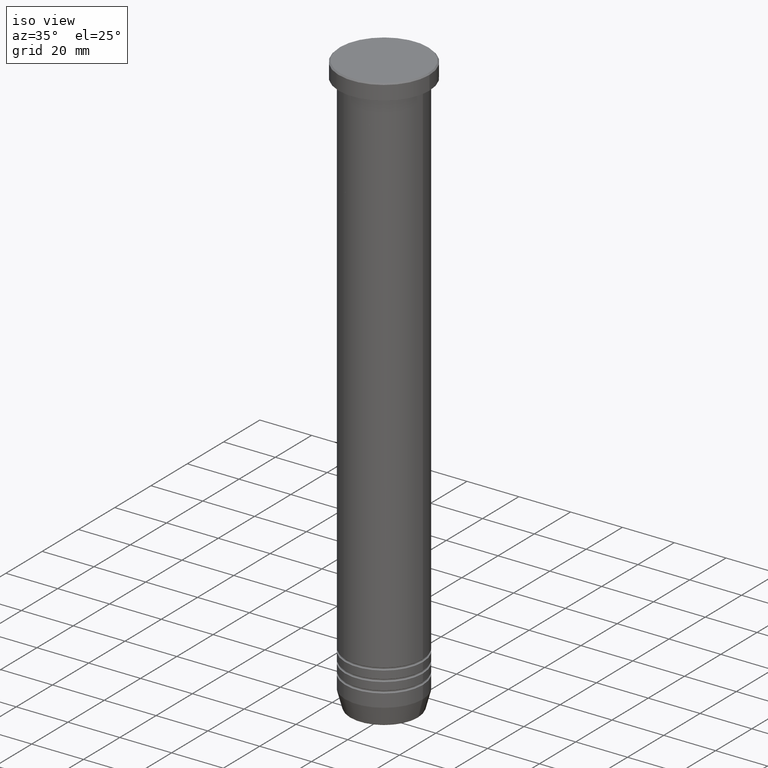
[diagram: clean part render]
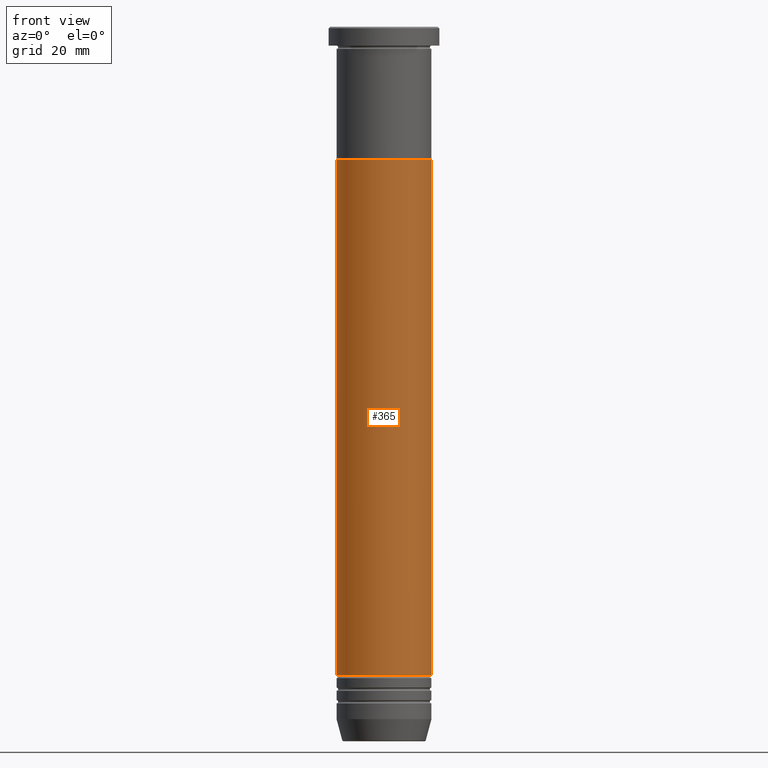
[diagram: tour spotlight — one face highlighted and labeled with its STEP entity id]
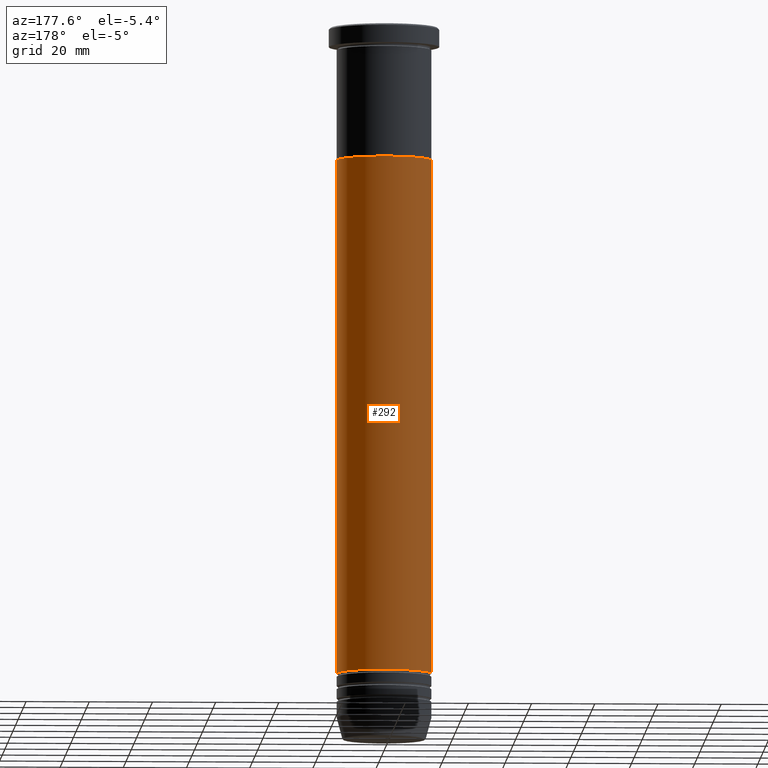
[diagram: tour spotlight — one face highlighted and labeled with its STEP entity id]
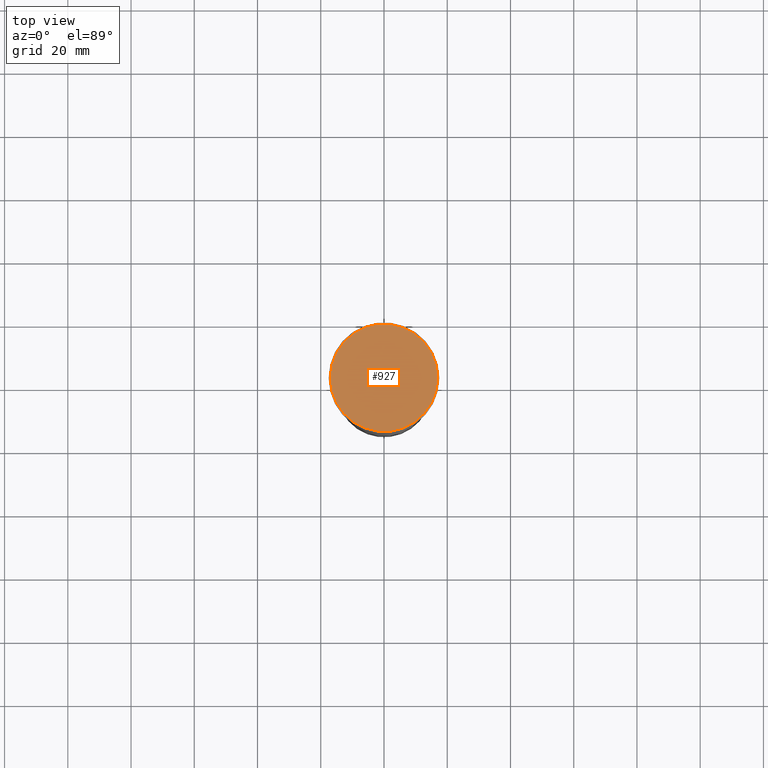
[diagram: tour spotlight — one face highlighted and labeled with its STEP entity id]
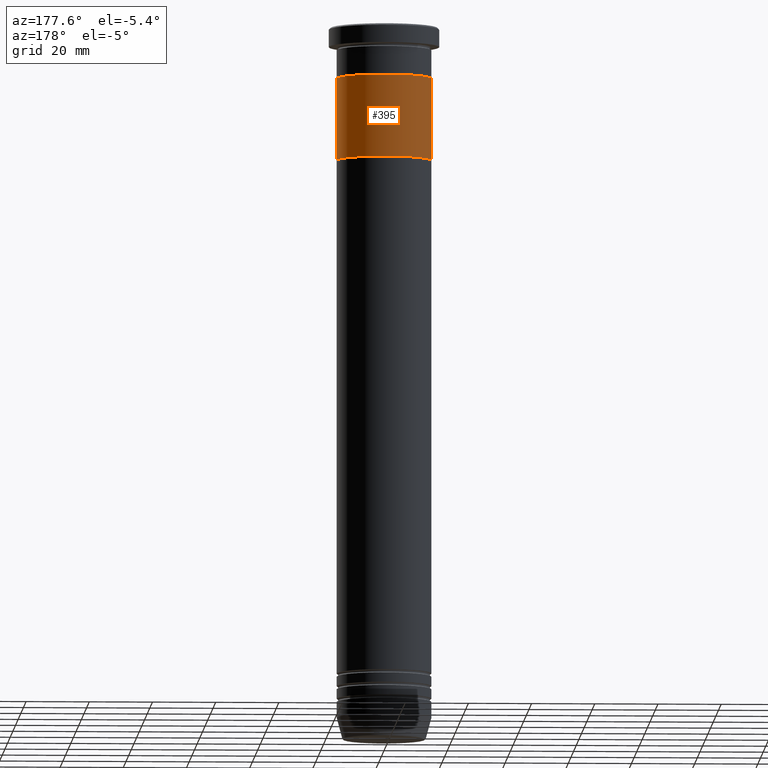
[diagram: tour spotlight — one face highlighted and labeled with its STEP entity id]
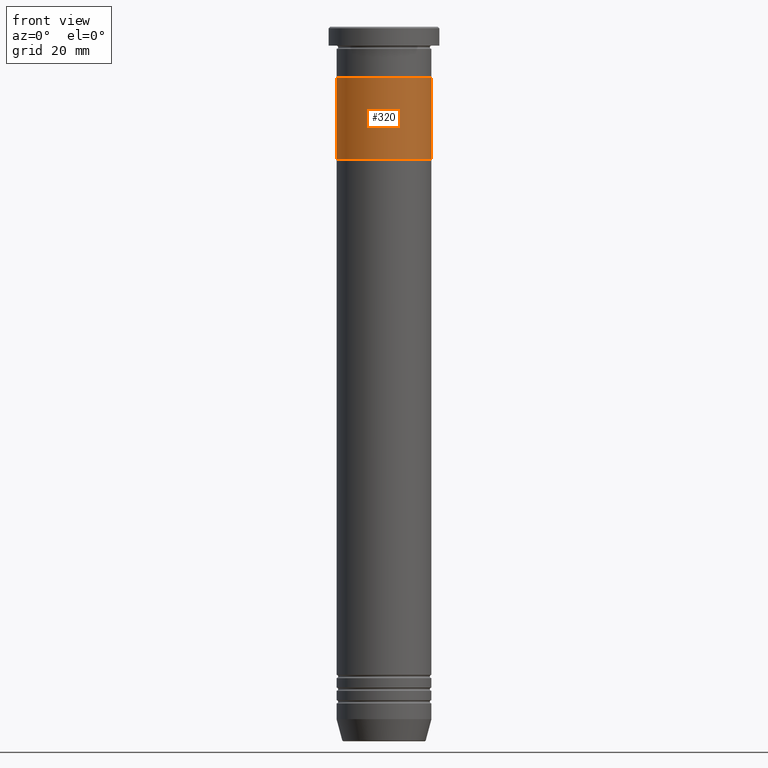
[diagram: tour spotlight — one face highlighted and labeled with its STEP entity id]
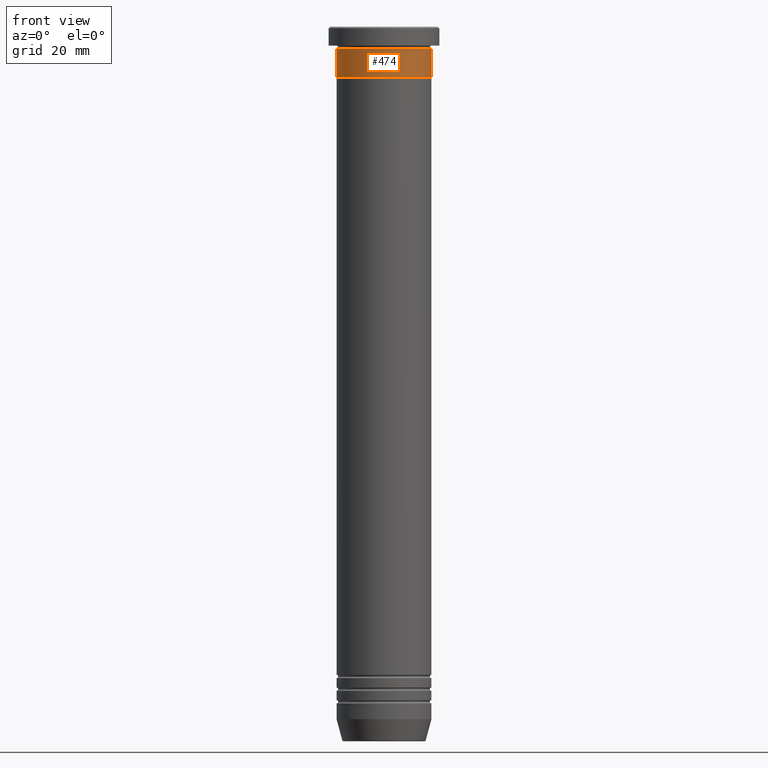
[diagram: tour spotlight — one face highlighted and labeled with its STEP entity id]
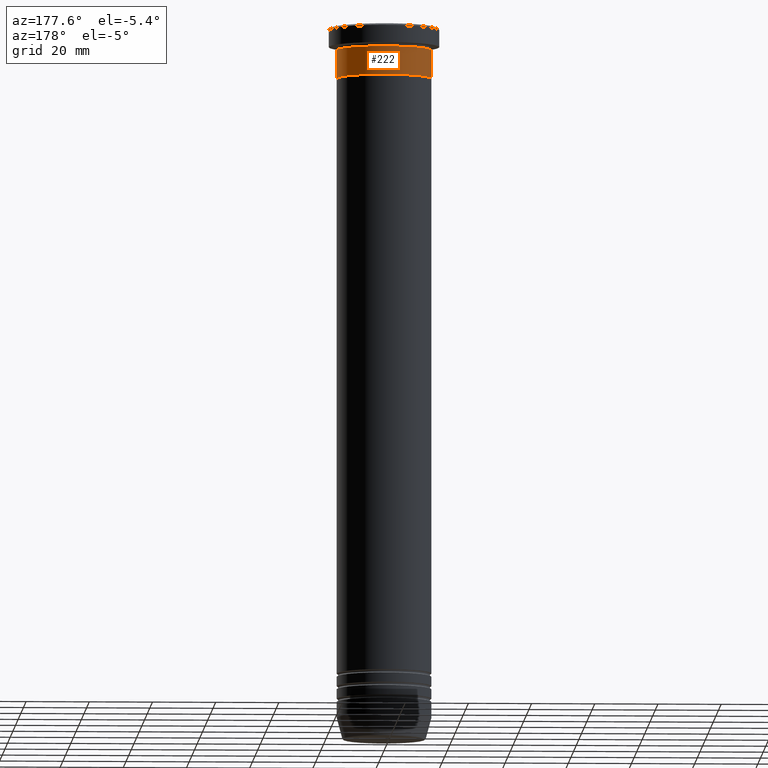
[diagram: tour spotlight — one face highlighted and labeled with its STEP entity id]
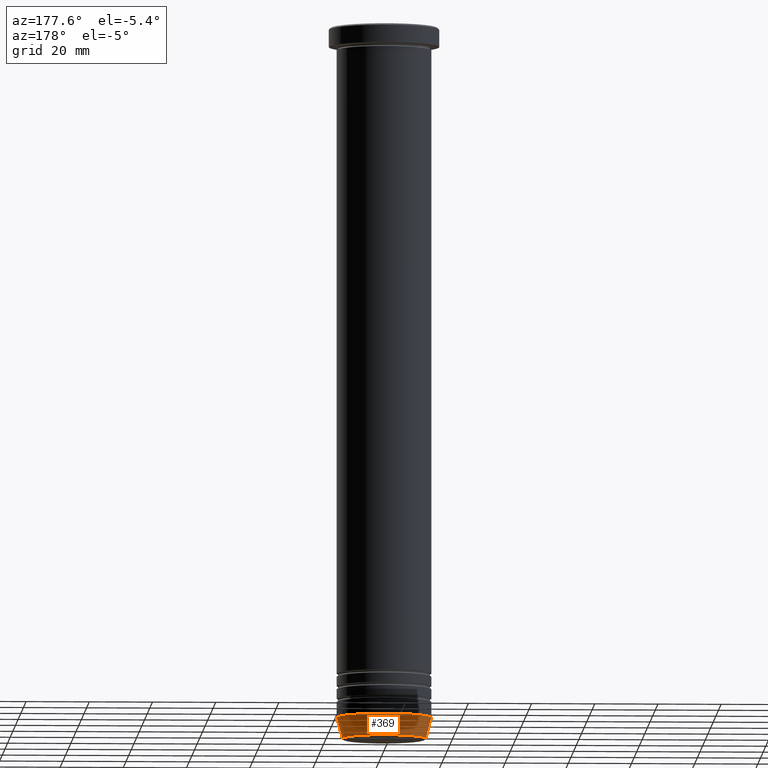
[diagram: tour spotlight — one face highlighted and labeled with its STEP entity id]
A machine part: a face-by-face anatomy tour. The part has 43 B-rep faces; the first image is the clean iso view, then the 8 largest visible faces are spotlighted one at a time (largest first), each with its STEP entity span.

Face 1 — front view, entity #365. In plain terms, the highlighted cylindrical surface (partial cylindrical patch) has radius 15 mm, axis along (-0, -0, 1).
Definition (entity closure, byte-faithful):
#24 = DIRECTION ( 'NONE',  ( 1.000000000000000000, 0.000000000000000000, 0.000000000000000000 ) ) ;
#38 = EDGE_CURVE ( 'NONE', #825, #1015, #943, .T. ) ;
#58 = ORIENTED_EDGE ( 'NONE', *, *, #1002, .F. ) ;
#71 = CARTESIAN_POINT ( 'NONE',  ( 15.00000000000000000, 0.000000000000000000, -41.99999999999999289 ) ) ;
#96 = ORIENTED_EDGE ( 'NONE', *, *, #313, .T. ) ;
#106 = AXIS2_PLACEMENT_3D ( 'NONE', #897, #728, #285 ) ;
#175 = VERTEX_POINT ( 'NONE', #525 ) ;
#184 = ORIENTED_EDGE ( 'NONE', *, *, #895, .T. ) ;
#190 = CIRCLE ( 'NONE', #845, 15.00000000000000000 ) ;
#199 = CYLINDRICAL_SURFACE ( 'NONE', #596, 14.99999999999999645 ) ;
#234 = DIRECTION ( 'NONE',  ( -0.000000000000000000, -0.000000000000000000, 1.000000000000000000 ) ) ;
#271 = VERTEX_POINT ( 'NONE', #71 ) ;
#285 = DIRECTION ( 'NONE',  ( 1.000000000000000000, 0.000000000000000000, 0.000000000000000000 ) ) ;
#295 = VECTOR ( 'NONE', #234, 1000.000000000000000 ) ;
#313 = EDGE_CURVE ( 'NONE', #825, #175, #1130, .T. ) ;
#365 = ADVANCED_FACE ( 'NONE', ( #992 ), #199, .T. ) ;
#391 = CARTESIAN_POINT ( 'NONE',  ( -15.00000000000000000, 1.836970198721029589E-15, -41.99999999999999289 ) ) ;
#429 = ORIENTED_EDGE ( 'NONE', *, *, #38, .F. ) ;
#464 = CARTESIAN_POINT ( 'NONE',  ( 14.99999999999999645, 0.000000000000000000, 0.000000000000000000 ) ) ;
#477 = DIRECTION ( 'NONE',  ( -0.000000000000000000, -0.000000000000000000, 1.000000000000000000 ) ) ;
#525 = CARTESIAN_POINT ( 'NONE',  ( 14.99999999999999112, 0.000000000000000000, -205.0000000000000000 ) ) ;
#559 = DIRECTION ( 'NONE',  ( -0.000000000000000000, -0.000000000000000000, 1.000000000000000000 ) ) ;
#596 = AXIS2_PLACEMENT_3D ( 'NONE', #651, #559, #24 ) ;
#631 = DIRECTION ( 'NONE',  ( -0.000000000000000000, -0.000000000000000000, 1.000000000000000000 ) ) ;
#651 = CARTESIAN_POINT ( 'NONE',  ( 0.000000000000000000, 0.000000000000000000, 0.000000000000000000 ) ) ;
#659 = DIRECTION ( 'NONE',  ( 1.000000000000000000, 0.000000000000000000, 0.000000000000000000 ) ) ;
#728 = DIRECTION ( 'NONE',  ( -0.000000000000000000, -0.000000000000000000, 1.000000000000000000 ) ) ;
#803 = LINE ( 'NONE', #464, #1033 ) ;
#825 = VERTEX_POINT ( 'NONE', #1003 ) ;
#845 = AXIS2_PLACEMENT_3D ( 'NONE', #917, #477, #659 ) ;
#859 = CARTESIAN_POINT ( 'NONE',  ( -14.99999999999999645, 1.836970198721029194E-15, 0.000000000000000000 ) ) ;
#895 = EDGE_CURVE ( 'NONE', #175, #271, #803, .T. ) ;
#897 = CARTESIAN_POINT ( 'NONE',  ( 0.000000000000000000, 0.000000000000000000, -205.0000000000000000 ) ) ;
#917 = CARTESIAN_POINT ( 'NONE',  ( 0.000000000000000000, 0.000000000000000000, -41.99999999999999289 ) ) ;
#943 = LINE ( 'NONE', #859, #295 ) ;
#992 = FACE_OUTER_BOUND ( 'NONE', #1100, .T. ) ;
#1002 = EDGE_CURVE ( 'NONE', #1015, #271, #190, .T. ) ;
#1003 = CARTESIAN_POINT ( 'NONE',  ( -14.99999999999999112, 1.836970198721028800E-15, -205.0000000000000000 ) ) ;
#1015 = VERTEX_POINT ( 'NONE', #391 ) ;
#1033 = VECTOR ( 'NONE', #631, 1000.000000000000000 ) ;
#1100 = EDGE_LOOP ( 'NONE', ( #429, #96, #184, #58 ) ) ;
#1130 = CIRCLE ( 'NONE', #106, 14.99999999999999112 ) ;

Face 2 — auxiliary view, entity #292. In plain terms, the highlighted cylindrical surface (partial cylindrical patch) has radius 15 mm, axis along (-0, -0, 1).
Definition (entity closure, byte-faithful):
#17 = DIRECTION ( 'NONE',  ( 1.000000000000000000, 0.000000000000000000, 0.000000000000000000 ) ) ;
#38 = EDGE_CURVE ( 'NONE', #825, #1015, #943, .T. ) ;
#71 = CARTESIAN_POINT ( 'NONE',  ( 15.00000000000000000, 0.000000000000000000, -41.99999999999999289 ) ) ;
#82 = EDGE_CURVE ( 'NONE', #271, #1015, #683, .T. ) ;
#125 = CYLINDRICAL_SURFACE ( 'NONE', #330, 14.99999999999999645 ) ;
#175 = VERTEX_POINT ( 'NONE', #525 ) ;
#203 = AXIS2_PLACEMENT_3D ( 'NONE', #807, #551, #252 ) ;
#208 = ORIENTED_EDGE ( 'NONE', *, *, #287, .T. ) ;
#234 = DIRECTION ( 'NONE',  ( -0.000000000000000000, -0.000000000000000000, 1.000000000000000000 ) ) ;
#244 = DIRECTION ( 'NONE',  ( 1.000000000000000000, 0.000000000000000000, 0.000000000000000000 ) ) ;
#249 = ORIENTED_EDGE ( 'NONE', *, *, #895, .F. ) ;
#252 = DIRECTION ( 'NONE',  ( 1.000000000000000000, 0.000000000000000000, 0.000000000000000000 ) ) ;
#271 = VERTEX_POINT ( 'NONE', #71 ) ;
#287 = EDGE_CURVE ( 'NONE', #175, #825, #654, .T. ) ;
#292 = ADVANCED_FACE ( 'NONE', ( #1142 ), #125, .T. ) ;
#295 = VECTOR ( 'NONE', #234, 1000.000000000000000 ) ;
#330 = AXIS2_PLACEMENT_3D ( 'NONE', #1085, #1081, #17 ) ;
#391 = CARTESIAN_POINT ( 'NONE',  ( -15.00000000000000000, 1.836970198721029589E-15, -41.99999999999999289 ) ) ;
#422 = AXIS2_PLACEMENT_3D ( 'NONE', #663, #930, #244 ) ;
#464 = CARTESIAN_POINT ( 'NONE',  ( 14.99999999999999645, 0.000000000000000000, 0.000000000000000000 ) ) ;
#520 = ORIENTED_EDGE ( 'NONE', *, *, #38, .T. ) ;
#525 = CARTESIAN_POINT ( 'NONE',  ( 14.99999999999999112, 0.000000000000000000, -205.0000000000000000 ) ) ;
#551 = DIRECTION ( 'NONE',  ( -0.000000000000000000, -0.000000000000000000, 1.000000000000000000 ) ) ;
#631 = DIRECTION ( 'NONE',  ( -0.000000000000000000, -0.000000000000000000, 1.000000000000000000 ) ) ;
#654 = CIRCLE ( 'NONE', #203, 14.99999999999999112 ) ;
#663 = CARTESIAN_POINT ( 'NONE',  ( 0.000000000000000000, 0.000000000000000000, -41.99999999999999289 ) ) ;
#683 = CIRCLE ( 'NONE', #422, 15.00000000000000000 ) ;
#803 = LINE ( 'NONE', #464, #1033 ) ;
#807 = CARTESIAN_POINT ( 'NONE',  ( 0.000000000000000000, 0.000000000000000000, -205.0000000000000000 ) ) ;
#815 = EDGE_LOOP ( 'NONE', ( #208, #520, #999, #249 ) ) ;
#825 = VERTEX_POINT ( 'NONE', #1003 ) ;
#859 = CARTESIAN_POINT ( 'NONE',  ( -14.99999999999999645, 1.836970198721029194E-15, 0.000000000000000000 ) ) ;
#895 = EDGE_CURVE ( 'NONE', #175, #271, #803, .T. ) ;
#930 = DIRECTION ( 'NONE',  ( -0.000000000000000000, -0.000000000000000000, 1.000000000000000000 ) ) ;
#943 = LINE ( 'NONE', #859, #295 ) ;
#999 = ORIENTED_EDGE ( 'NONE', *, *, #82, .F. ) ;
#1003 = CARTESIAN_POINT ( 'NONE',  ( -14.99999999999999112, 1.836970198721028800E-15, -205.0000000000000000 ) ) ;
#1015 = VERTEX_POINT ( 'NONE', #391 ) ;
#1033 = VECTOR ( 'NONE', #631, 1000.000000000000000 ) ;
#1081 = DIRECTION ( 'NONE',  ( -0.000000000000000000, -0.000000000000000000, 1.000000000000000000 ) ) ;
#1085 = CARTESIAN_POINT ( 'NONE',  ( 0.000000000000000000, 0.000000000000000000, 0.000000000000000000 ) ) ;
#1142 = FACE_OUTER_BOUND ( 'NONE', #815, .T. ) ;

Face 3 — top view, entity #927. In plain terms, the highlighted planar face has unit normal (0, -0, 1).
Definition (entity closure, byte-faithful):
#11 = DIRECTION ( 'NONE',  ( 1.000000000000000000, 0.000000000000000000, 0.000000000000000000 ) ) ;
#109 = AXIS2_PLACEMENT_3D ( 'NONE', #745, #905, #307 ) ;
#133 = DIRECTION ( 'NONE',  ( 1.000000000000000000, 0.000000000000000000, 0.000000000000000000 ) ) ;
#236 = ORIENTED_EDGE ( 'NONE', *, *, #1077, .T. ) ;
#241 = AXIS2_PLACEMENT_3D ( 'NONE', #715, #536, #11 ) ;
#307 = DIRECTION ( 'NONE',  ( 1.000000000000000000, 0.000000000000000000, 0.000000000000000000 ) ) ;
#381 = EDGE_LOOP ( 'NONE', ( #383, #236 ) ) ;
#383 = ORIENTED_EDGE ( 'NONE', *, *, #975, .T. ) ;
#441 = CARTESIAN_POINT ( 'NONE',  ( -17.00000000000000000, 0.000000000000000000, 0.000000000000000000 ) ) ;
#459 = PLANE ( 'NONE',  #241 ) ;
#511 = DIRECTION ( 'NONE',  ( -0.000000000000000000, -0.000000000000000000, 1.000000000000000000 ) ) ;
#529 = CIRCLE ( 'NONE', #109, 17.00000000000000000 ) ;
#532 = VERTEX_POINT ( 'NONE', #441 ) ;
#536 = DIRECTION ( 'NONE',  ( 0.000000000000000000, -0.000000000000000000, 1.000000000000000000 ) ) ;
#563 = CIRCLE ( 'NONE', #868, 17.00000000000000000 ) ;
#715 = CARTESIAN_POINT ( 'NONE',  ( 0.000000000000000000, 0.000000000000000000, 0.000000000000000000 ) ) ;
#725 = VERTEX_POINT ( 'NONE', #899 ) ;
#745 = CARTESIAN_POINT ( 'NONE',  ( 0.000000000000000000, 0.000000000000000000, 0.000000000000000000 ) ) ;
#789 = FACE_OUTER_BOUND ( 'NONE', #381, .T. ) ;
#868 = AXIS2_PLACEMENT_3D ( 'NONE', #1116, #511, #133 ) ;
#899 = CARTESIAN_POINT ( 'NONE',  ( 17.00000000000000000, 2.112515728529184067E-15, 0.000000000000000000 ) ) ;
#905 = DIRECTION ( 'NONE',  ( -0.000000000000000000, -0.000000000000000000, 1.000000000000000000 ) ) ;
#927 = ADVANCED_FACE ( 'NONE', ( #789 ), #459, .T. ) ;
#975 = EDGE_CURVE ( 'NONE', #532, #725, #529, .T. ) ;
#1077 = EDGE_CURVE ( 'NONE', #725, #532, #563, .T. ) ;
#1116 = CARTESIAN_POINT ( 'NONE',  ( 0.000000000000000000, 0.000000000000000000, 0.000000000000000000 ) ) ;

Face 4 — auxiliary view, entity #395. In plain terms, the highlighted cylindrical surface (partial cylindrical patch) has radius 15 mm, axis along (-0, -0, 1).
Definition (entity closure, byte-faithful):
#16 = AXIS2_PLACEMENT_3D ( 'NONE', #95, #179, #274 ) ;
#40 = LINE ( 'NONE', #323, #960 ) ;
#95 = CARTESIAN_POINT ( 'NONE',  ( 0.000000000000000000, 0.000000000000000000, -16.00000000000000000 ) ) ;
#113 = EDGE_CURVE ( 'NONE', #343, #117, #1025, .T. ) ;
#117 = VERTEX_POINT ( 'NONE', #1124 ) ;
#179 = DIRECTION ( 'NONE',  ( 0.000000000000000000, 0.000000000000000000, -1.000000000000000000 ) ) ;
#202 = VECTOR ( 'NONE', #597, 1000.000000000000000 ) ;
#242 = EDGE_CURVE ( 'NONE', #1094, #117, #1110, .T. ) ;
#274 = DIRECTION ( 'NONE',  ( -1.000000000000000000, 0.000000000000000000, 0.000000000000000000 ) ) ;
#298 = AXIS2_PLACEMENT_3D ( 'NONE', #718, #437, #1059 ) ;
#323 = CARTESIAN_POINT ( 'NONE',  ( -15.00000000000000000, 1.836970198721029194E-15, -41.99999999999999289 ) ) ;
#343 = VERTEX_POINT ( 'NONE', #466 ) ;
#395 = ADVANCED_FACE ( 'NONE', ( #396 ), #1103, .T. ) ;
#396 = FACE_OUTER_BOUND ( 'NONE', #573, .T. ) ;
#437 = DIRECTION ( 'NONE',  ( 0.000000000000000000, 0.000000000000000000, -1.000000000000000000 ) ) ;
#466 = CARTESIAN_POINT ( 'NONE',  ( 15.00000000000000000, 0.000000000000000000, -41.99999999999999289 ) ) ;
#497 = ORIENTED_EDGE ( 'NONE', *, *, #113, .F. ) ;
#502 = CARTESIAN_POINT ( 'NONE',  ( -15.00000000000000000, 1.836970198721029194E-15, -41.99999999999999289 ) ) ;
#506 = DIRECTION ( 'NONE',  ( 1.000000000000000000, 0.000000000000000000, 0.000000000000000000 ) ) ;
#550 = CIRCLE ( 'NONE', #298, 15.00000000000000000 ) ;
#573 = EDGE_LOOP ( 'NONE', ( #1122, #811, #824, #497 ) ) ;
#583 = CARTESIAN_POINT ( 'NONE',  ( -15.00000000000000000, 1.836970198721029194E-15, -16.00000000000000000 ) ) ;
#587 = CARTESIAN_POINT ( 'NONE',  ( 0.000000000000000000, 0.000000000000000000, -41.99999999999999289 ) ) ;
#597 = DIRECTION ( 'NONE',  ( -0.000000000000000000, -0.000000000000000000, 1.000000000000000000 ) ) ;
#718 = CARTESIAN_POINT ( 'NONE',  ( 0.000000000000000000, 0.000000000000000000, -41.99999999999999289 ) ) ;
#772 = CARTESIAN_POINT ( 'NONE',  ( 15.00000000000000000, 0.000000000000000000, -41.99999999999999289 ) ) ;
#811 = ORIENTED_EDGE ( 'NONE', *, *, #1056, .T. ) ;
#813 = AXIS2_PLACEMENT_3D ( 'NONE', #587, #929, #506 ) ;
#824 = ORIENTED_EDGE ( 'NONE', *, *, #242, .T. ) ;
#852 = DIRECTION ( 'NONE',  ( -0.000000000000000000, -0.000000000000000000, 1.000000000000000000 ) ) ;
#929 = DIRECTION ( 'NONE',  ( -0.000000000000000000, -0.000000000000000000, 1.000000000000000000 ) ) ;
#942 = EDGE_CURVE ( 'NONE', #1137, #343, #550, .T. ) ;
#960 = VECTOR ( 'NONE', #852, 1000.000000000000000 ) ;
#1025 = LINE ( 'NONE', #772, #202 ) ;
#1056 = EDGE_CURVE ( 'NONE', #1137, #1094, #40, .T. ) ;
#1059 = DIRECTION ( 'NONE',  ( -1.000000000000000000, 0.000000000000000000, 0.000000000000000000 ) ) ;
#1094 = VERTEX_POINT ( 'NONE', #583 ) ;
#1103 = CYLINDRICAL_SURFACE ( 'NONE', #813, 15.00000000000000000 ) ;
#1110 = CIRCLE ( 'NONE', #16, 15.00000000000000000 ) ;
#1122 = ORIENTED_EDGE ( 'NONE', *, *, #942, .F. ) ;
#1124 = CARTESIAN_POINT ( 'NONE',  ( 15.00000000000000000, 0.000000000000000000, -16.00000000000000000 ) ) ;
#1137 = VERTEX_POINT ( 'NONE', #502 ) ;

Face 5 — front view, entity #320. In plain terms, the highlighted cylindrical surface (partial cylindrical patch) has radius 15 mm, axis along (-0, -0, 1).
Definition (entity closure, byte-faithful):
#31 = ORIENTED_EDGE ( 'NONE', *, *, #1056, .F. ) ;
#40 = LINE ( 'NONE', #323, #960 ) ;
#44 = EDGE_CURVE ( 'NONE', #343, #1137, #46, .T. ) ;
#46 = CIRCLE ( 'NONE', #524, 15.00000000000000000 ) ;
#102 = ORIENTED_EDGE ( 'NONE', *, *, #44, .F. ) ;
#107 = DIRECTION ( 'NONE',  ( -0.000000000000000000, -0.000000000000000000, 1.000000000000000000 ) ) ;
#113 = EDGE_CURVE ( 'NONE', #343, #117, #1025, .T. ) ;
#117 = VERTEX_POINT ( 'NONE', #1124 ) ;
#202 = VECTOR ( 'NONE', #597, 1000.000000000000000 ) ;
#229 = DIRECTION ( 'NONE',  ( -1.000000000000000000, 0.000000000000000000, 0.000000000000000000 ) ) ;
#258 = EDGE_CURVE ( 'NONE', #117, #1094, #489, .T. ) ;
#265 = DIRECTION ( 'NONE',  ( -1.000000000000000000, 0.000000000000000000, 0.000000000000000000 ) ) ;
#320 = ADVANCED_FACE ( 'NONE', ( #490 ), #1097, .T. ) ;
#323 = CARTESIAN_POINT ( 'NONE',  ( -15.00000000000000000, 1.836970198721029194E-15, -41.99999999999999289 ) ) ;
#324 = EDGE_LOOP ( 'NONE', ( #31, #102, #417, #691 ) ) ;
#343 = VERTEX_POINT ( 'NONE', #466 ) ;
#370 = CARTESIAN_POINT ( 'NONE',  ( 0.000000000000000000, 0.000000000000000000, -41.99999999999999289 ) ) ;
#417 = ORIENTED_EDGE ( 'NONE', *, *, #113, .T. ) ;
#466 = CARTESIAN_POINT ( 'NONE',  ( 15.00000000000000000, 0.000000000000000000, -41.99999999999999289 ) ) ;
#476 = DIRECTION ( 'NONE',  ( 1.000000000000000000, 0.000000000000000000, 0.000000000000000000 ) ) ;
#489 = CIRCLE ( 'NONE', #828, 15.00000000000000000 ) ;
#490 = FACE_OUTER_BOUND ( 'NONE', #324, .T. ) ;
#501 = CARTESIAN_POINT ( 'NONE',  ( 0.000000000000000000, 0.000000000000000000, -41.99999999999999289 ) ) ;
#502 = CARTESIAN_POINT ( 'NONE',  ( -15.00000000000000000, 1.836970198721029194E-15, -41.99999999999999289 ) ) ;
#524 = AXIS2_PLACEMENT_3D ( 'NONE', #501, #675, #229 ) ;
#533 = CARTESIAN_POINT ( 'NONE',  ( 0.000000000000000000, 0.000000000000000000, -16.00000000000000000 ) ) ;
#583 = CARTESIAN_POINT ( 'NONE',  ( -15.00000000000000000, 1.836970198721029194E-15, -16.00000000000000000 ) ) ;
#597 = DIRECTION ( 'NONE',  ( -0.000000000000000000, -0.000000000000000000, 1.000000000000000000 ) ) ;
#635 = DIRECTION ( 'NONE',  ( 0.000000000000000000, 0.000000000000000000, -1.000000000000000000 ) ) ;
#675 = DIRECTION ( 'NONE',  ( 0.000000000000000000, 0.000000000000000000, -1.000000000000000000 ) ) ;
#691 = ORIENTED_EDGE ( 'NONE', *, *, #258, .T. ) ;
#771 = AXIS2_PLACEMENT_3D ( 'NONE', #370, #107, #476 ) ;
#772 = CARTESIAN_POINT ( 'NONE',  ( 15.00000000000000000, 0.000000000000000000, -41.99999999999999289 ) ) ;
#828 = AXIS2_PLACEMENT_3D ( 'NONE', #533, #635, #265 ) ;
#852 = DIRECTION ( 'NONE',  ( -0.000000000000000000, -0.000000000000000000, 1.000000000000000000 ) ) ;
#960 = VECTOR ( 'NONE', #852, 1000.000000000000000 ) ;
#1025 = LINE ( 'NONE', #772, #202 ) ;
#1056 = EDGE_CURVE ( 'NONE', #1137, #1094, #40, .T. ) ;
#1094 = VERTEX_POINT ( 'NONE', #583 ) ;
#1097 = CYLINDRICAL_SURFACE ( 'NONE', #771, 15.00000000000000000 ) ;
#1124 = CARTESIAN_POINT ( 'NONE',  ( 15.00000000000000000, 0.000000000000000000, -16.00000000000000000 ) ) ;
#1137 = VERTEX_POINT ( 'NONE', #502 ) ;

Face 6 — front view, entity #474. In plain terms, the highlighted cylindrical surface (partial cylindrical patch) has radius 15 mm, axis along (-0, -0, 1).
Definition (entity closure, byte-faithful):
#52 = EDGE_LOOP ( 'NONE', ( #1042, #378, #317, #607 ) ) ;
#81 = CARTESIAN_POINT ( 'NONE',  ( 15.00000000000000000, 0.000000000000000000, -6.999999999999999112 ) ) ;
#97 = CARTESIAN_POINT ( 'NONE',  ( -15.00000000000000000, 1.836970198721029589E-15, -16.00000000000000000 ) ) ;
#164 = DIRECTION ( 'NONE',  ( -0.000000000000000000, -0.000000000000000000, 1.000000000000000000 ) ) ;
#170 = EDGE_CURVE ( 'NONE', #860, #821, #891, .T. ) ;
#182 = DIRECTION ( 'NONE',  ( 1.000000000000000000, 0.000000000000000000, 0.000000000000000000 ) ) ;
#187 = DIRECTION ( 'NONE',  ( -0.000000000000000000, -0.000000000000000000, 1.000000000000000000 ) ) ;
#191 = EDGE_CURVE ( 'NONE', #821, #224, #471, .T. ) ;
#198 = DIRECTION ( 'NONE',  ( 1.000000000000000000, 0.000000000000000000, 0.000000000000000000 ) ) ;
#224 = VERTEX_POINT ( 'NONE', #81 ) ;
#228 = CARTESIAN_POINT ( 'NONE',  ( 15.00000000000000000, 0.000000000000000000, -16.00000000000000000 ) ) ;
#256 = CARTESIAN_POINT ( 'NONE',  ( -15.00000000000000000, 1.836970198721029589E-15, -6.999999999999999112 ) ) ;
#264 = LINE ( 'NONE', #791, #885 ) ;
#317 = ORIENTED_EDGE ( 'NONE', *, *, #460, .T. ) ;
#345 = DIRECTION ( 'NONE',  ( -0.000000000000000000, -0.000000000000000000, 1.000000000000000000 ) ) ;
#353 = CARTESIAN_POINT ( 'NONE',  ( -15.00000000000000000, 1.836970198721029589E-15, 0.000000000000000000 ) ) ;
#378 = ORIENTED_EDGE ( 'NONE', *, *, #834, .T. ) ;
#434 = FACE_OUTER_BOUND ( 'NONE', #52, .T. ) ;
#443 = DIRECTION ( 'NONE',  ( -0.000000000000000000, -0.000000000000000000, 1.000000000000000000 ) ) ;
#452 = AXIS2_PLACEMENT_3D ( 'NONE', #873, #443, #182 ) ;
#460 = EDGE_CURVE ( 'NONE', #608, #224, #264, .T. ) ;
#471 = CIRCLE ( 'NONE', #452, 15.00000000000000000 ) ;
#474 = ADVANCED_FACE ( 'NONE', ( #434 ), #539, .T. ) ;
#508 = AXIS2_PLACEMENT_3D ( 'NONE', #731, #345, #198 ) ;
#539 = CYLINDRICAL_SURFACE ( 'NONE', #508, 15.00000000000000000 ) ;
#545 = DIRECTION ( 'NONE',  ( -0.000000000000000000, -0.000000000000000000, 1.000000000000000000 ) ) ;
#607 = ORIENTED_EDGE ( 'NONE', *, *, #191, .F. ) ;
#608 = VERTEX_POINT ( 'NONE', #228 ) ;
#640 = AXIS2_PLACEMENT_3D ( 'NONE', #967, #187, #835 ) ;
#731 = CARTESIAN_POINT ( 'NONE',  ( 0.000000000000000000, 0.000000000000000000, 0.000000000000000000 ) ) ;
#791 = CARTESIAN_POINT ( 'NONE',  ( 15.00000000000000000, 0.000000000000000000, 0.000000000000000000 ) ) ;
#821 = VERTEX_POINT ( 'NONE', #256 ) ;
#834 = EDGE_CURVE ( 'NONE', #860, #608, #979, .T. ) ;
#835 = DIRECTION ( 'NONE',  ( 1.000000000000000000, 0.000000000000000000, 0.000000000000000000 ) ) ;
#860 = VERTEX_POINT ( 'NONE', #97 ) ;
#873 = CARTESIAN_POINT ( 'NONE',  ( 0.000000000000000000, 0.000000000000000000, -6.999999999999999112 ) ) ;
#885 = VECTOR ( 'NONE', #164, 1000.000000000000000 ) ;
#891 = LINE ( 'NONE', #353, #1128 ) ;
#967 = CARTESIAN_POINT ( 'NONE',  ( 0.000000000000000000, 0.000000000000000000, -16.00000000000000000 ) ) ;
#979 = CIRCLE ( 'NONE', #640, 15.00000000000000000 ) ;
#1042 = ORIENTED_EDGE ( 'NONE', *, *, #170, .F. ) ;
#1128 = VECTOR ( 'NONE', #545, 1000.000000000000000 ) ;

Face 7 — auxiliary view, entity #222. In plain terms, the highlighted cylindrical surface (partial cylindrical patch) has radius 15 mm, axis along (-0, -0, 1).
Definition (entity closure, byte-faithful):
#81 = CARTESIAN_POINT ( 'NONE',  ( 15.00000000000000000, 0.000000000000000000, -6.999999999999999112 ) ) ;
#97 = CARTESIAN_POINT ( 'NONE',  ( -15.00000000000000000, 1.836970198721029589E-15, -16.00000000000000000 ) ) ;
#150 = ORIENTED_EDGE ( 'NONE', *, *, #170, .T. ) ;
#160 = EDGE_CURVE ( 'NONE', #224, #821, #735, .T. ) ;
#164 = DIRECTION ( 'NONE',  ( -0.000000000000000000, -0.000000000000000000, 1.000000000000000000 ) ) ;
#170 = EDGE_CURVE ( 'NONE', #860, #821, #891, .T. ) ;
#186 = AXIS2_PLACEMENT_3D ( 'NONE', #462, #435, #189 ) ;
#189 = DIRECTION ( 'NONE',  ( 1.000000000000000000, 0.000000000000000000, 0.000000000000000000 ) ) ;
#222 = ADVANCED_FACE ( 'NONE', ( #1039 ), #1052, .T. ) ;
#224 = VERTEX_POINT ( 'NONE', #81 ) ;
#228 = CARTESIAN_POINT ( 'NONE',  ( 15.00000000000000000, 0.000000000000000000, -16.00000000000000000 ) ) ;
#254 = DIRECTION ( 'NONE',  ( -0.000000000000000000, -0.000000000000000000, 1.000000000000000000 ) ) ;
#255 = CARTESIAN_POINT ( 'NONE',  ( 0.000000000000000000, 0.000000000000000000, -6.999999999999999112 ) ) ;
#256 = CARTESIAN_POINT ( 'NONE',  ( -15.00000000000000000, 1.836970198721029589E-15, -6.999999999999999112 ) ) ;
#264 = LINE ( 'NONE', #791, #885 ) ;
#329 = ORIENTED_EDGE ( 'NONE', *, *, #160, .F. ) ;
#346 = DIRECTION ( 'NONE',  ( 1.000000000000000000, 0.000000000000000000, 0.000000000000000000 ) ) ;
#353 = CARTESIAN_POINT ( 'NONE',  ( -15.00000000000000000, 1.836970198721029589E-15, 0.000000000000000000 ) ) ;
#387 = CIRCLE ( 'NONE', #994, 15.00000000000000000 ) ;
#435 = DIRECTION ( 'NONE',  ( -0.000000000000000000, -0.000000000000000000, 1.000000000000000000 ) ) ;
#460 = EDGE_CURVE ( 'NONE', #608, #224, #264, .T. ) ;
#462 = CARTESIAN_POINT ( 'NONE',  ( 0.000000000000000000, 0.000000000000000000, 0.000000000000000000 ) ) ;
#487 = EDGE_CURVE ( 'NONE', #608, #860, #387, .T. ) ;
#541 = DIRECTION ( 'NONE',  ( -0.000000000000000000, -0.000000000000000000, 1.000000000000000000 ) ) ;
#545 = DIRECTION ( 'NONE',  ( -0.000000000000000000, -0.000000000000000000, 1.000000000000000000 ) ) ;
#547 = AXIS2_PLACEMENT_3D ( 'NONE', #255, #541, #346 ) ;
#608 = VERTEX_POINT ( 'NONE', #228 ) ;
#617 = DIRECTION ( 'NONE',  ( 1.000000000000000000, 0.000000000000000000, 0.000000000000000000 ) ) ;
#680 = EDGE_LOOP ( 'NONE', ( #1029, #150, #329, #916 ) ) ;
#735 = CIRCLE ( 'NONE', #547, 15.00000000000000000 ) ;
#791 = CARTESIAN_POINT ( 'NONE',  ( 15.00000000000000000, 0.000000000000000000, 0.000000000000000000 ) ) ;
#821 = VERTEX_POINT ( 'NONE', #256 ) ;
#860 = VERTEX_POINT ( 'NONE', #97 ) ;
#885 = VECTOR ( 'NONE', #164, 1000.000000000000000 ) ;
#891 = LINE ( 'NONE', #353, #1128 ) ;
#916 = ORIENTED_EDGE ( 'NONE', *, *, #460, .F. ) ;
#966 = CARTESIAN_POINT ( 'NONE',  ( 0.000000000000000000, 0.000000000000000000, -16.00000000000000000 ) ) ;
#994 = AXIS2_PLACEMENT_3D ( 'NONE', #966, #254, #617 ) ;
#1029 = ORIENTED_EDGE ( 'NONE', *, *, #487, .T. ) ;
#1039 = FACE_OUTER_BOUND ( 'NONE', #680, .T. ) ;
#1052 = CYLINDRICAL_SURFACE ( 'NONE', #186, 15.00000000000000000 ) ;
#1128 = VECTOR ( 'NONE', #545, 1000.000000000000000 ) ;

Face 8 — auxiliary view, entity #369. In plain terms, the highlighted conical surface has half-angle 15 deg.
Definition (entity closure, byte-faithful):
#8 = EDGE_CURVE ( 'NONE', #681, #348, #993, .T. ) ;
#48 = CONICAL_SURFACE ( 'NONE', #620, 13.12435565298214080, 0.2617993877991488527 ) ;
#50 = ORIENTED_EDGE ( 'NONE', *, *, #878, .F. ) ;
#76 = EDGE_CURVE ( 'NONE', #348, #351, #1034, .T. ) ;
#120 = FACE_OUTER_BOUND ( 'NONE', #1139, .T. ) ;
#153 = ORIENTED_EDGE ( 'NONE', *, *, #575, .F. ) ;
#221 = VECTOR ( 'NONE', #363, 999.9999999999998863 ) ;
#246 = ORIENTED_EDGE ( 'NONE', *, *, #76, .T. ) ;
#348 = VERTEX_POINT ( 'NONE', #1069 ) ;
#351 = VERTEX_POINT ( 'NONE', #818 ) ;
#363 = DIRECTION ( 'NONE',  ( 0.2588190451025202399, 0.000000000000000000, 0.9659258262890684232 ) ) ;
#369 = ADVANCED_FACE ( 'NONE', ( #120 ), #48, .T. ) ;
#470 = CARTESIAN_POINT ( 'NONE',  ( 14.99999999999999822, 0.000000000000000000, -218.9999999999999716 ) ) ;
#480 = DIRECTION ( 'NONE',  ( -0.000000000000000000, -0.000000000000000000, 1.000000000000000000 ) ) ;
#482 = VERTEX_POINT ( 'NONE', #470 ) ;
#486 = DIRECTION ( 'NONE',  ( 1.000000000000000000, 0.000000000000000000, 0.000000000000000000 ) ) ;
#534 = DIRECTION ( 'NONE',  ( -0.000000000000000000, -0.000000000000000000, 1.000000000000000000 ) ) ;
#538 = CARTESIAN_POINT ( 'NONE',  ( 13.22365507213720015, 0.000000000000000000, -225.6294095225512422 ) ) ;
#555 = ORIENTED_EDGE ( 'NONE', *, *, #8, .T. ) ;
#575 = EDGE_CURVE ( 'NONE', #482, #351, #940, .T. ) ;
#618 = VECTOR ( 'NONE', #851, 999.9999999999998863 ) ;
#620 = AXIS2_PLACEMENT_3D ( 'NONE', #910, #480, #486 ) ;
#681 = VERTEX_POINT ( 'NONE', #538 ) ;
#808 = DIRECTION ( 'NONE',  ( -1.000000000000000000, 0.000000000000000000, 0.000000000000000000 ) ) ;
#818 = CARTESIAN_POINT ( 'NONE',  ( -14.99999999999999822, 1.836970198721029589E-15, -218.9999999999999716 ) ) ;
#840 = CARTESIAN_POINT ( 'NONE',  ( -13.12435565298214080, 1.607270014129604977E-15, -225.9999999999999716 ) ) ;
#851 = DIRECTION ( 'NONE',  ( -0.2588190451025202399, 3.169619151431758162E-17, 0.9659258262890684232 ) ) ;
#878 = EDGE_CURVE ( 'NONE', #681, #482, #1147, .T. ) ;
#910 = CARTESIAN_POINT ( 'NONE',  ( 0.000000000000000000, 0.000000000000000000, -225.9999999999999716 ) ) ;
#940 = CIRCLE ( 'NONE', #1032, 14.99999999999999822 ) ;
#954 = AXIS2_PLACEMENT_3D ( 'NONE', #1065, #534, #808 ) ;
#993 = CIRCLE ( 'NONE', #954, 13.22365507213720015 ) ;
#1018 = CARTESIAN_POINT ( 'NONE',  ( 0.000000000000000000, 0.000000000000000000, -218.9999999999999716 ) ) ;
#1032 = AXIS2_PLACEMENT_3D ( 'NONE', #1018, #1113, #1138 ) ;
#1034 = LINE ( 'NONE', #840, #618 ) ;
#1065 = CARTESIAN_POINT ( 'NONE',  ( 0.000000000000000000, 0.000000000000000000, -225.6294095225512422 ) ) ;
#1069 = CARTESIAN_POINT ( 'NONE',  ( -13.22365507213720015, 1.728200442216588780E-15, -225.6294095225512422 ) ) ;
#1072 = CARTESIAN_POINT ( 'NONE',  ( 13.12435565298214080, 0.000000000000000000, -225.9999999999999716 ) ) ;
#1113 = DIRECTION ( 'NONE',  ( -0.000000000000000000, -0.000000000000000000, 1.000000000000000000 ) ) ;
#1138 = DIRECTION ( 'NONE',  ( 1.000000000000000000, 0.000000000000000000, 0.000000000000000000 ) ) ;
#1139 = EDGE_LOOP ( 'NONE', ( #555, #246, #153, #50 ) ) ;
#1147 = LINE ( 'NONE', #1072, #221 ) ;